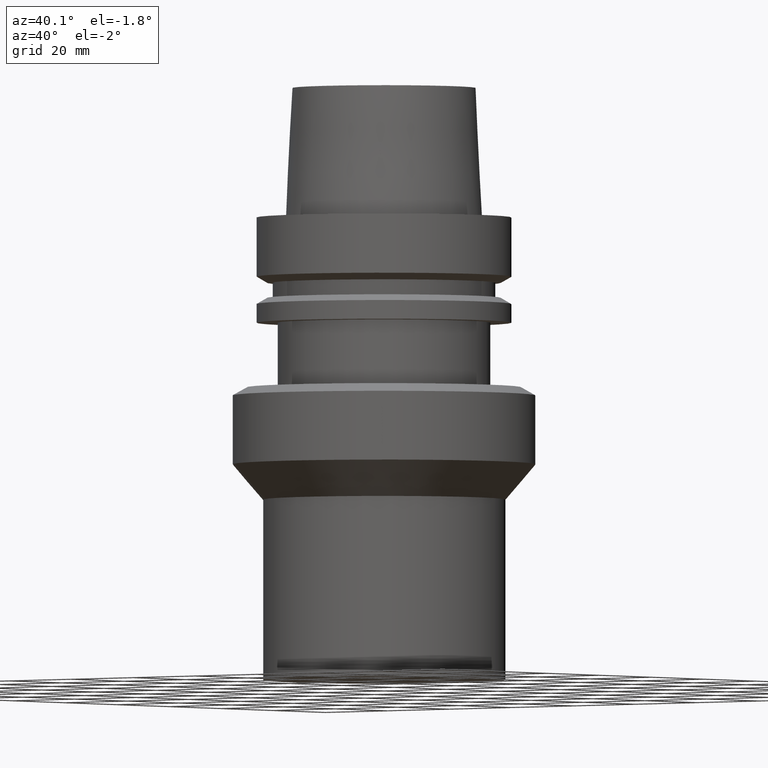
[diagram: clean part render]
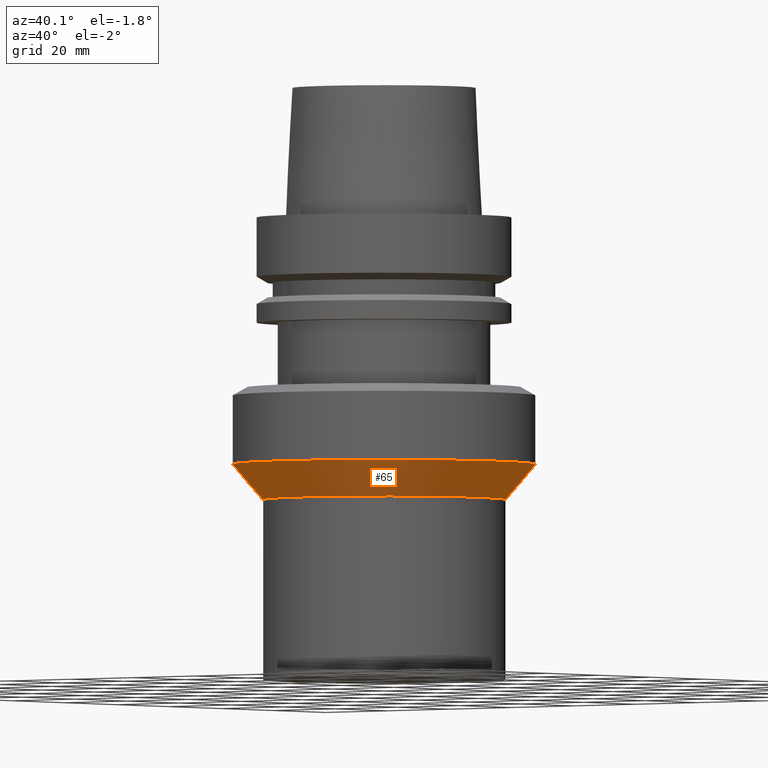
[diagram: same view with one face highlighted and labeled with its STEP entity id]
A machine part, auxiliary view. The second image highlights one B-rep face of the part: STEP entity #65.
In plain terms, the highlighted conical surface has half-angle 40.625 deg.
Its self-contained STEP definition (entity closure, byte-faithful):
#62=EDGE_CURVE('Unnamed[1]',#170,#170,#171,.T.);
#65=ADVANCED_FACE('Unnamed[1]',(#174,#175),#176,.T.);
#125=EDGE_CURVE('Unnamed[1]',#271,#271,#272,.T.);
#170=VERTEX_POINT('',#320);
#171=CIRCLE('',#321,30.0000000000003);
#174=FACE_BOUND('',#325,.T.);
#175=FACE_BOUND('',#326,.T.);
#176=CONICAL_SURFACE('',#327,33.7500000000002,0.709042058424612);
#271=VERTEX_POINT('',#445);
#272=CIRCLE('',#446,37.5000000000001);
#320=CARTESIAN_POINT('',(4.27050508407832E-015,30.0000000000003,-69.7426406871208));
#321=AXIS2_PLACEMENT_3D('',#495,#496,#497);
#325=EDGE_LOOP('',(#499));
#326=EDGE_LOOP('',(#500));
#327=AXIS2_PLACEMENT_3D('',#501,#502,#503);
#445=CARTESIAN_POINT('',(3.73517273739954E-015,37.5000000000001,-61.0000000000018));
#446=AXIS2_PLACEMENT_3D('',#611,#612,#613);
#495=CARTESIAN_POINT('',(4.27050508407832E-015,8.54101016815664E-015,-69.7426406871208));
#496=DIRECTION('',(-6.12323399573677E-017,-1.22464679914692E-016,1.0));
#497=DIRECTION('',(-1.23259516440782E-032,1.0,1.22464679914692E-016));
#499=ORIENTED_EDGE('',*,*,#125,.F.);
#500=ORIENTED_EDGE('',*,*,#62,.T.);
#501=CARTESIAN_POINT('',(4.00283891073893E-015,8.00567782147786E-015,-65.3713203435613));
#502=DIRECTION('',(-6.12323399573677E-017,-1.22464679914776E-016,1.0));
#503=DIRECTION('',(-1.23259516440782E-032,1.0,1.22464679914776E-016));
#611=CARTESIAN_POINT('',(3.73517273739954E-015,7.47034547479907E-015,-61.0000000000018));
#612=DIRECTION('',(-6.12323399573677E-017,-1.22464679914757E-016,1.0));
#613=DIRECTION('',(-1.23259516440783E-032,1.0,1.22464679914757E-016));